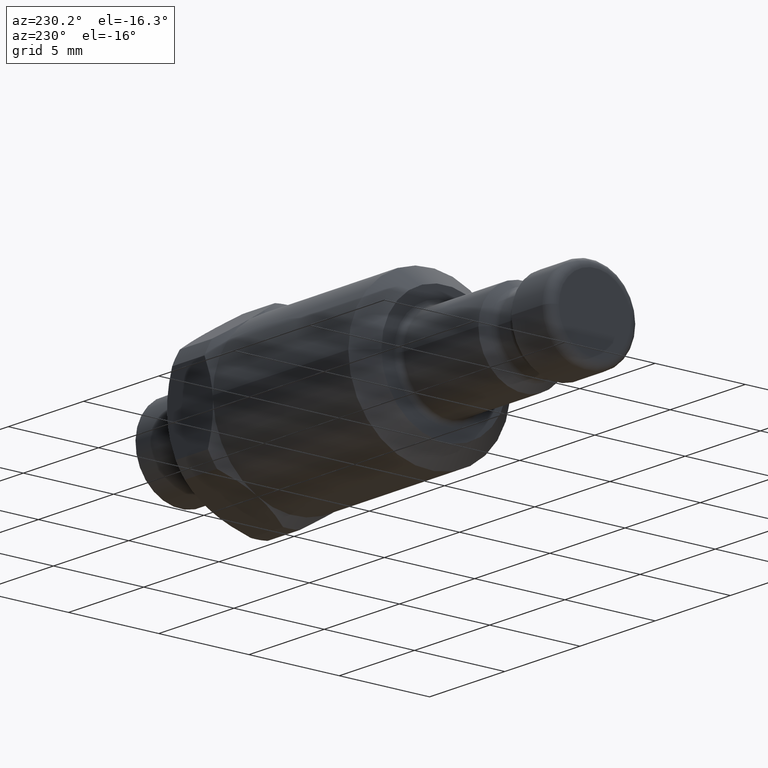
[diagram: clean part render]
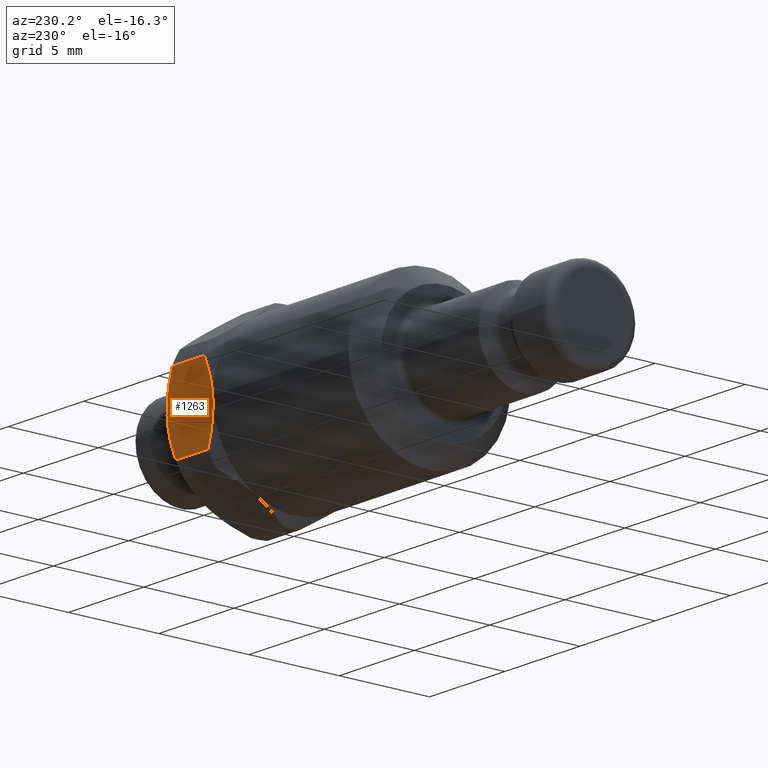
[diagram: same view with one face highlighted and labeled with its STEP entity id]
A machine part, auxiliary view. The second image highlights one B-rep face of the part: STEP entity #1263.
In plain terms, the highlighted planar face has unit normal (-0, -0.9989, 0.0461).
Its self-contained STEP definition (entity closure, byte-faithful):
#73=CARTESIAN_POINT('',(20.0,4.495207189392,-0.207635075164289));
#74=VERTEX_POINT('',#73);
#465=CARTESIAN_POINT('',(23.050000000000001,4.495207189392,-0.207635075164289));
#466=VERTEX_POINT('',#465);
#858=CARTESIAN_POINT('',(22.600000000000001,4.400056844505179,-2.267597796154144));
#859=VERTEX_POINT('',#858);
#867=CARTESIAN_POINT('',(22.600000000000001,4.400056844505179,-2.267597796154144));
#868=CARTESIAN_POINT('',(23.050000000000001,4.449897501350656,-1.188569704207078));
#869=CARTESIAN_POINT('',(23.050000000000001,4.495207189392,-0.207635075164289));
#877=(BOUNDED_CURVE()B_SPLINE_CURVE(2,(#867,#868,#869),.UNSPECIFIED.,.F.,.U.)B_SPLINE_CURVE_WITH_KNOTS((3,3),(0.0,0.212132062836384),.UNSPECIFIED.)CURVE()GEOMETRIC_REPRESENTATION_ITEM()RATIONAL_B_SPLINE_CURVE((1.0,1.024695076595943,1.0))REPRESENTATION_ITEM(''));
#878=EDGE_CURVE('',#859,#466,#877,.T.);
#889=CARTESIAN_POINT('',(22.600000000000001,4.590357534278819,1.852327645825567));
#890=VERTEX_POINT('',#889);
#891=CARTESIAN_POINT('',(23.050000000000001,4.495207189392,-0.207635075164289));
#892=CARTESIAN_POINT('',(23.050000000000001,4.540516877433342,0.7732995538785));
#893=CARTESIAN_POINT('',(22.600000000000001,4.590357534278819,1.852327645825567));
#901=(BOUNDED_CURVE()B_SPLINE_CURVE(2,(#891,#892,#893),.UNSPECIFIED.,.F.,.U.)B_SPLINE_CURVE_WITH_KNOTS((3,3),(0.212132062836384,0.424264125672769),.UNSPECIFIED.)CURVE()GEOMETRIC_REPRESENTATION_ITEM()RATIONAL_B_SPLINE_CURVE((1.0,1.024695076595943,1.0))REPRESENTATION_ITEM(''));
#902=EDGE_CURVE('',#466,#890,#901,.T.);
#1025=CARTESIAN_POINT('',(20.450000000000003,4.400056844505179,-2.267597796154146));
#1026=VERTEX_POINT('',#1025);
#1034=CARTESIAN_POINT('',(20.450000000000003,4.40005684450518,-2.267597796154144));
#1035=DIRECTION('',(1.0,0.0,0.0));
#1036=VECTOR('',#1035,2.149999999999999);
#1037=LINE('',#1034,#1036);
#1038=EDGE_CURVE('',#1026,#859,#1037,.T.);
#1049=CARTESIAN_POINT('',(20.450000000000003,4.590357534278819,1.852327645825568));
#1050=VERTEX_POINT('',#1049);
#1051=CARTESIAN_POINT('',(22.600000000000001,4.590357534278819,1.852327645825567));
#1052=DIRECTION('',(-1.0,0.0,0.0));
#1053=VECTOR('',#1052,2.149999999999999);
#1054=LINE('',#1051,#1053);
#1055=EDGE_CURVE('',#890,#1050,#1054,.T.);
#1209=CARTESIAN_POINT('',(20.000000000000004,4.495207189392,-0.207635075164289));
#1210=CARTESIAN_POINT('',(20.000000000000004,4.449897501350657,-1.188569704207074));
#1211=CARTESIAN_POINT('',(20.450000000000003,4.40005684450518,-2.26759779615414));
#1219=(BOUNDED_CURVE()B_SPLINE_CURVE(2,(#1209,#1210,#1211),.UNSPECIFIED.,.F.,.U.)B_SPLINE_CURVE_WITH_KNOTS((3,3),(0.212132062836384,0.424264125672768),.UNSPECIFIED.)CURVE()GEOMETRIC_REPRESENTATION_ITEM()RATIONAL_B_SPLINE_CURVE((1.0,1.024695076595957,1.0))REPRESENTATION_ITEM(''));
#1220=EDGE_CURVE('',#74,#1026,#1219,.T.);
#1231=CARTESIAN_POINT('',(20.450000000000003,4.590357534278819,1.852327645825562));
#1232=CARTESIAN_POINT('',(20.000000000000004,4.540516877433341,0.773299553878495));
#1233=CARTESIAN_POINT('',(20.000000000000004,4.495207189392,-0.207635075164289));
#1241=(BOUNDED_CURVE()B_SPLINE_CURVE(2,(#1231,#1232,#1233),.UNSPECIFIED.,.F.,.U.)B_SPLINE_CURVE_WITH_KNOTS((3,3),(0.0,0.212132062836384),.UNSPECIFIED.)CURVE()GEOMETRIC_REPRESENTATION_ITEM()RATIONAL_B_SPLINE_CURVE((1.0,1.024695076595977,1.0))REPRESENTATION_ITEM(''));
#1242=EDGE_CURVE('',#1050,#74,#1241,.T.);
#1250=CARTESIAN_POINT('',(19.031643322095782,4.495207189392,-0.207635075164289));
#1251=DIRECTION('',(-4.601503E-017,-0.998934930976,0.046141127814286));
#1252=DIRECTION('',(-1.0,0.0,0.0));
#1253=AXIS2_PLACEMENT_3D('',#1250,#1251,#1252);
#1254=PLANE('',#1253);
#1255=ORIENTED_EDGE('',*,*,#878,.F.);
#1256=ORIENTED_EDGE('',*,*,#1038,.F.);
#1257=ORIENTED_EDGE('',*,*,#1220,.F.);
#1258=ORIENTED_EDGE('',*,*,#1242,.F.);
#1259=ORIENTED_EDGE('',*,*,#1055,.F.);
#1260=ORIENTED_EDGE('',*,*,#902,.F.);
#1261=EDGE_LOOP('',(#1255,#1256,#1257,#1258,#1259,#1260));
#1262=FACE_OUTER_BOUND('',#1261,.T.);
#1263=ADVANCED_FACE('',(#1262),#1254,.F.);